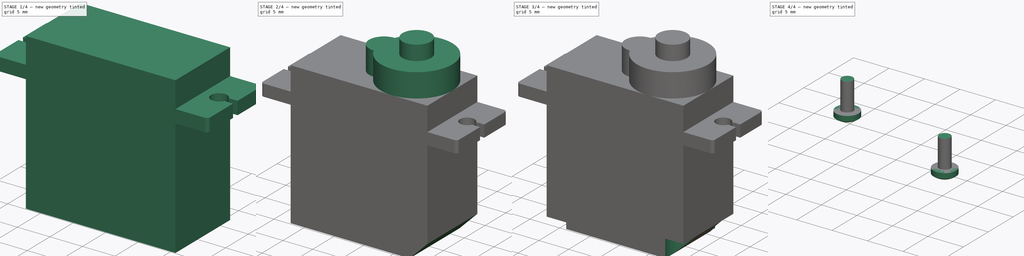
[diagram: build sequence overview — one tinted view per stage of 4, left to right]
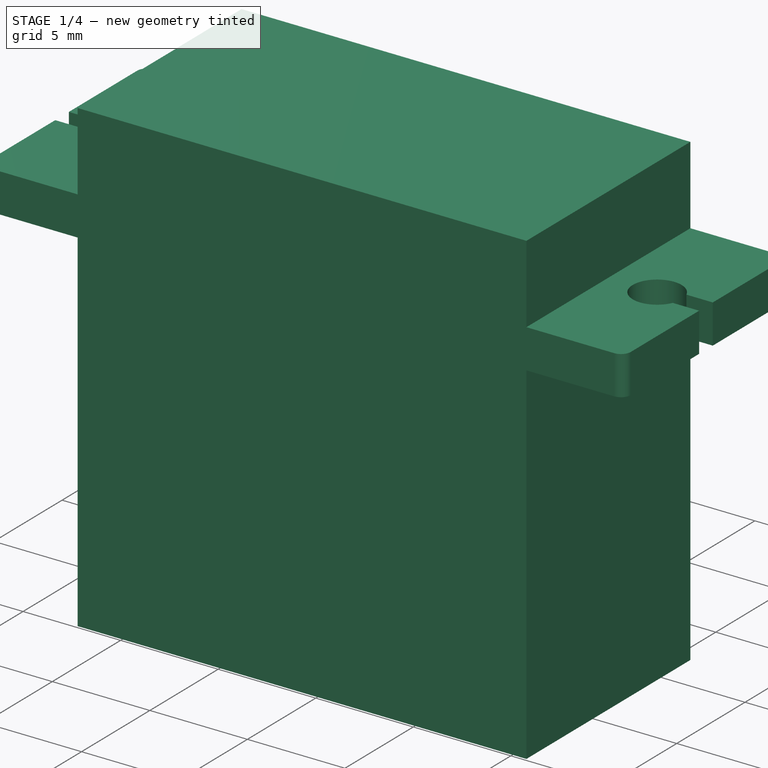
[diagram: stage 1 of 4 — iso view after this stage's code; geometry added in this stage tinted green]
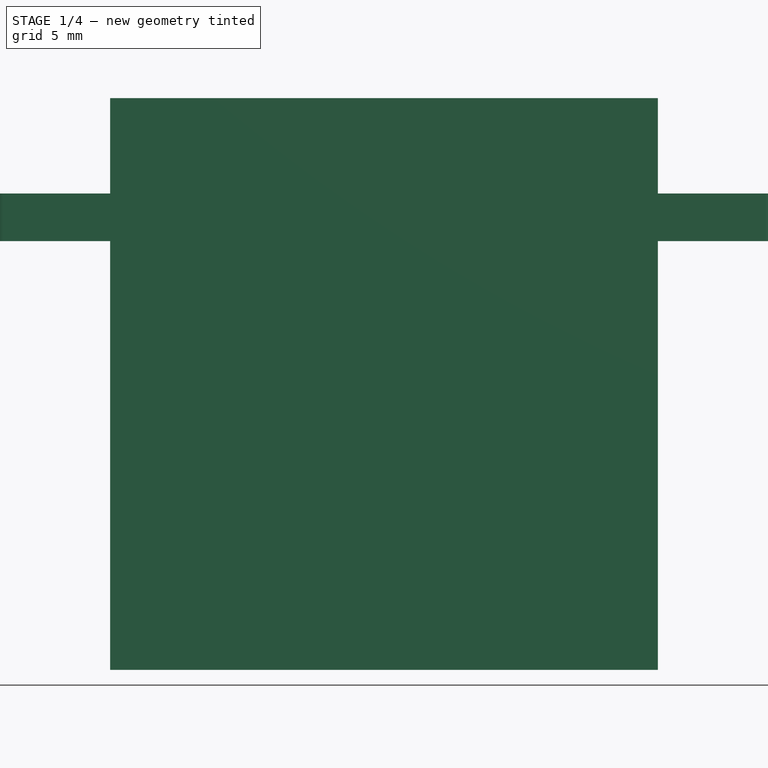
[diagram: stage 1 of 4 — front view after this stage's code; geometry added in this stage tinted green]
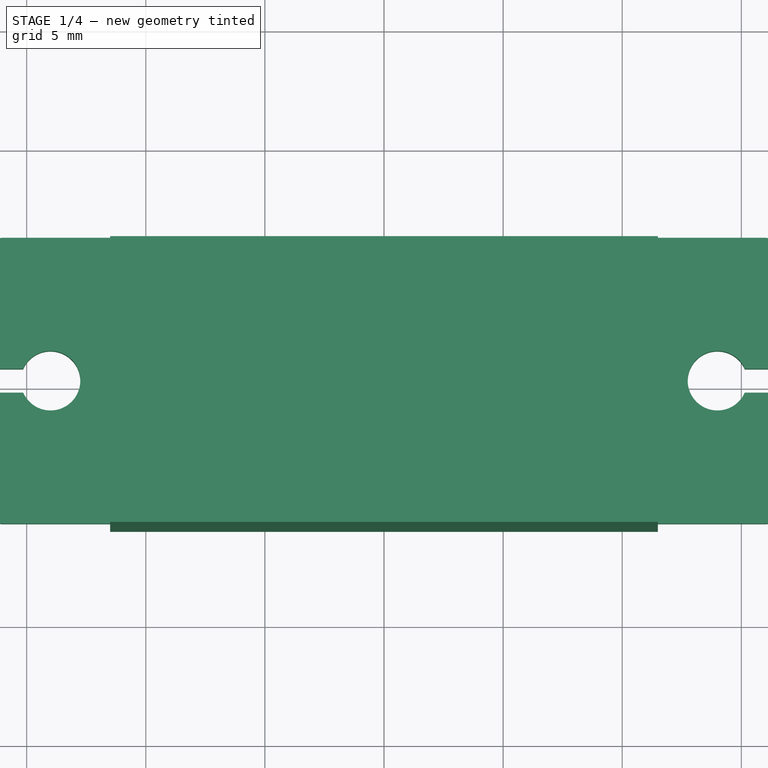
[diagram: stage 1 of 4 — top view after this stage's code; geometry added in this stage tinted green]
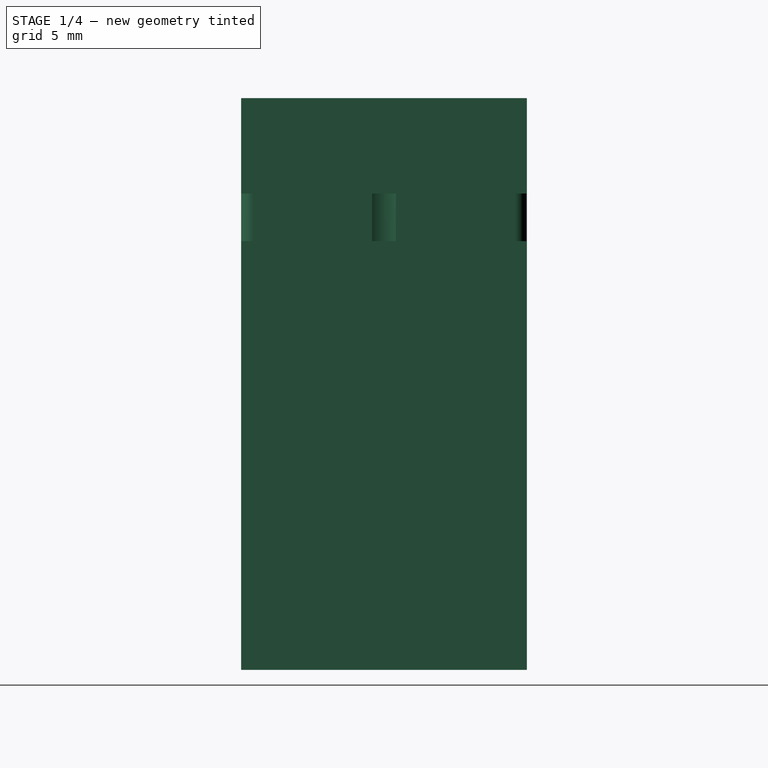
[diagram: stage 1 of 4 — right view after this stage's code; geometry added in this stage tinted green]
FCSTD DOCUMENT  (FreeCAD 0.19R24276 (Git))
Label: servo_SG90
License: All rights reserved
LicenseURL: http://en.wikipedia.org/wiki/All_rights_reserved
objects: Sketcher::SketchObject×9, PartDesign::Pad×4, PartDesign::Pocket×4, App::DocumentObjectGroup×2, Part::FeaturePython×2, PartDesign::Plane×1, PartDesign::Mirrored×1, PartDesign::Chamfer×1, PartDesign::SubShapeBinder×1, PartDesign::Body×1
note: 33 computed .brp shape members not serialized (recipe doc carries the construction recipe); baked Part::Feature solids carry a one-line shape summary decoded from their .brp

FEATURE [Sketcher::SketchObject] Sketch
  FullyConstrained = true
  MapMode = 5
  Support = -> [XY_Plane]
  sketch-geometry (4):
    g0: LineSegment StartX=-11.5 StartY=-6 StartZ=0 EndX=11.5 EndY=-6 EndZ=0
    g1: LineSegment StartX=11.5 StartY=-6 StartZ=0 EndX=11.5 EndY=6 EndZ=0
    g2: LineSegment StartX=11.5 StartY=6 StartZ=0 EndX=-11.5 EndY=6 EndZ=0
    g3: LineSegment StartX=-11.5 StartY=6 StartZ=0 EndX=-11.5 EndY=-6 EndZ=0
  constraints (11):
    c: Coincident(g0,g1)
    c: Coincident(g1,g2)
    c: Coincident(g2,g3)
    c: Coincident(g3,g0)
    c: Horizontal(g0)
    c: Horizontal(g2)
    c: Vertical(g1)
    c: Vertical(g3)
    c: Symmetric(g0,g1,g-1)
    c: DistanceX(g0,g0) = 23
    c: DistanceY(g1,g1) = 12
FEATURE [PartDesign::Pad] Pad
  Direction = (1,1,1)
  Length = 24
  Length2 = 100
  Profile = -> Sketch
  Type = 0
FEATURE [PartDesign::Plane] DatumPlane
  AttachmentOffset = pos=(0,0,-4) rot=(0,0,1;0rad)
  Length = 60
  MapMode = 5
  Placement = pos=(0,0,20) rot=(0,0,1;0rad)
  ResizeMode = 0
  Support = -> [Pad]
  Width = 60
FEATURE [Sketcher::SketchObject] Sketch001
  ExternalGeometry = -> [Pad]
  FullyConstrained = true
  MapMode = 5
  Placement = pos=(0,0,20) rot=(0,0,1;0rad)
  Support = -> [DatumPlane]
  sketch-geometry (10):
    g0: LineSegment StartX=11.5 StartY=6 StartZ=0 EndX=16 EndY=6 EndZ=0
    g1: LineSegment StartX=16.5 StartY=5.5 StartZ=0 EndX=16.5 EndY=0.5 EndZ=0
    g2: LineSegment StartX=16 StartY=-6 StartZ=0 EndX=11.5 EndY=-6 EndZ=0
    g3: LineSegment StartX=11.5 StartY=-6 StartZ=0 EndX=11.5 EndY=6 EndZ=0
    g4: ArcOfCircle CenterX=16 CenterY=5.5 CenterZ=0 NormalX=0 NormalY=0 NormalZ=1 AngleXU=0 Radius=0.5 StartAngle=3e-16 EndAngle=1.5708
    g5: ArcOfCircle CenterX=16 CenterY=-5.5 CenterZ=0 NormalX=0 NormalY=0 NormalZ=1 AngleXU=0 Radius=0.5 StartAngle=4.71239 EndAngle=6.28319
    g6: ArcOfCircle CenterX=14 CenterY=0 CenterZ=0 NormalX=0 NormalY=0 NormalZ=1 AngleXU=0 Radius=1.25 StartAngle=0.411517 EndAngle=5.87167
    g7: LineSegment StartX=15.1456 StartY=0.5 StartZ=0 EndX=16.5 EndY=0.5 EndZ=0
    g8: LineSegment StartX=16.5 StartY=-0.5 StartZ=0 EndX=15.1456 EndY=-0.5 EndZ=0
    g9: LineSegment StartX=16.5 StartY=-0.5 StartZ=0 EndX=16.5 EndY=-5.5 EndZ=0
  constraints (25):
    c: Coincident(g2,g3)
    c: Coincident(g3,g0)
    c: Horizontal(g0)
    c: Horizontal(g2)
    c: Coincident(g0,g-3)
    c: Coincident(g2,g-4)
    c: Tangent(g0,g4) = 1.5708
    c: Tangent(g1,g4) = 1.5708
    c: Tangent(g2,g5) = 1.5708
    c: Equal(g4,g5)
    c: DistanceX(g2,g9) = 5
    c: Radius(g4) = 0.5
    c: PointOnObject(g6,g-1)
    c: Diameter(g6) = 2.5
    c: DistanceX(g-1,g6) = 14
    c: Horizontal(g7)
    c: Horizontal(g8)
    c: Tangent(g1,g9)
    c: Coincident(g7,g1)
    c: Coincident(g8,g9)
    c: Coincident(g6,g7)
    c: Coincident(g6,g8)
    c: DistanceY(g6,g6) = 1
    c: Symmetric(g1,g8,g-1)
    c: Tangent(g9,g5) = 1.5708
FEATURE [PartDesign::Pad] Pad001
  BaseFeature = -> Pad
  Direction = (1,1,1)
  Length = 2
  Length2 = 100
  Profile = -> Sketch001
  Reversed = true
  Type = 0
FEATURE [PartDesign::Mirrored] Mirrored
  BaseFeature = -> Pad001
  MirrorPlane = -> Sketch001 [V_Axis]
  Originals = -> [Pad001]
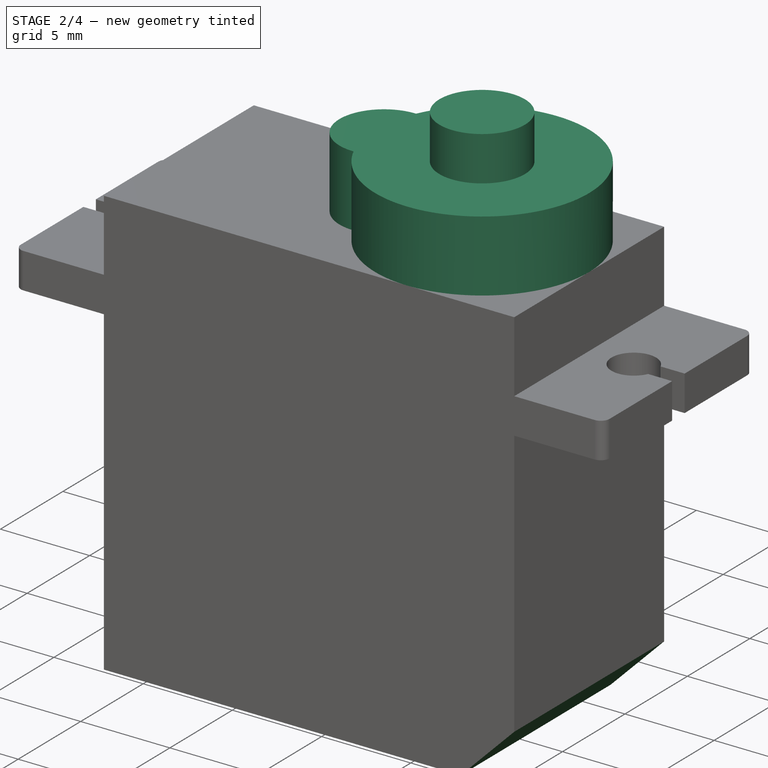
[diagram: stage 2 of 4 — iso view after this stage's code; geometry added in this stage tinted green]
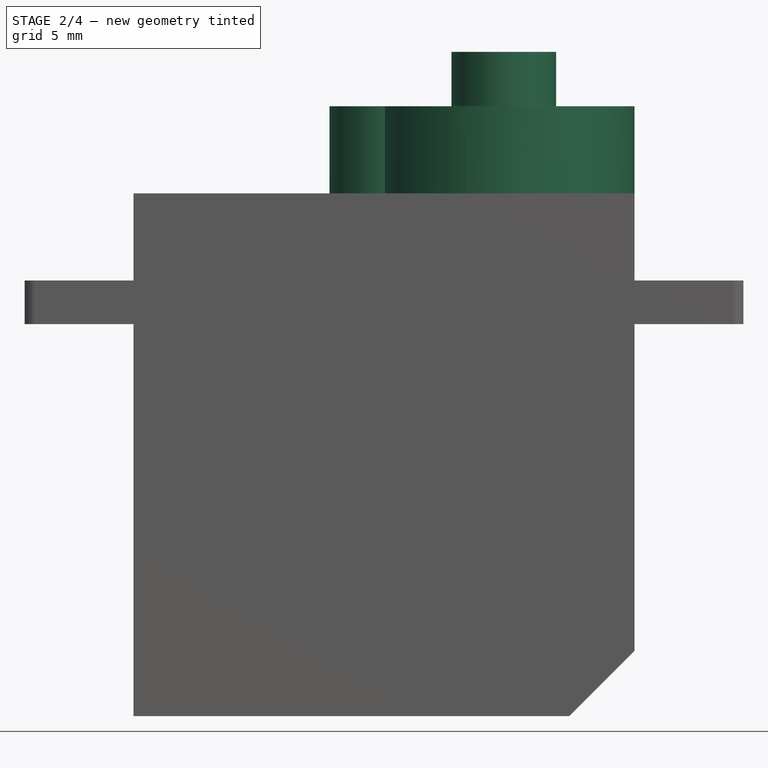
[diagram: stage 2 of 4 — front view after this stage's code; geometry added in this stage tinted green]
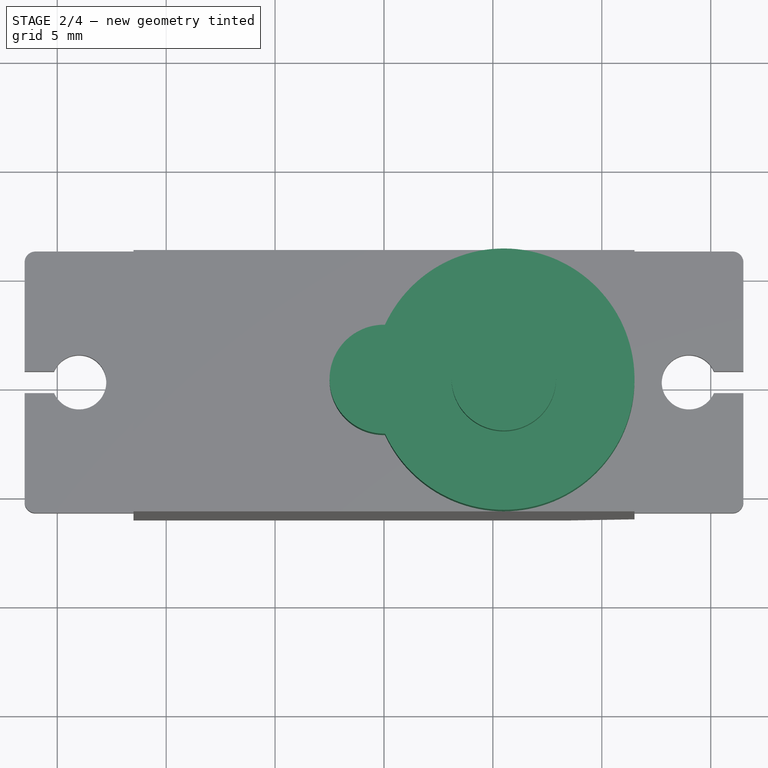
[diagram: stage 2 of 4 — top view after this stage's code; geometry added in this stage tinted green]
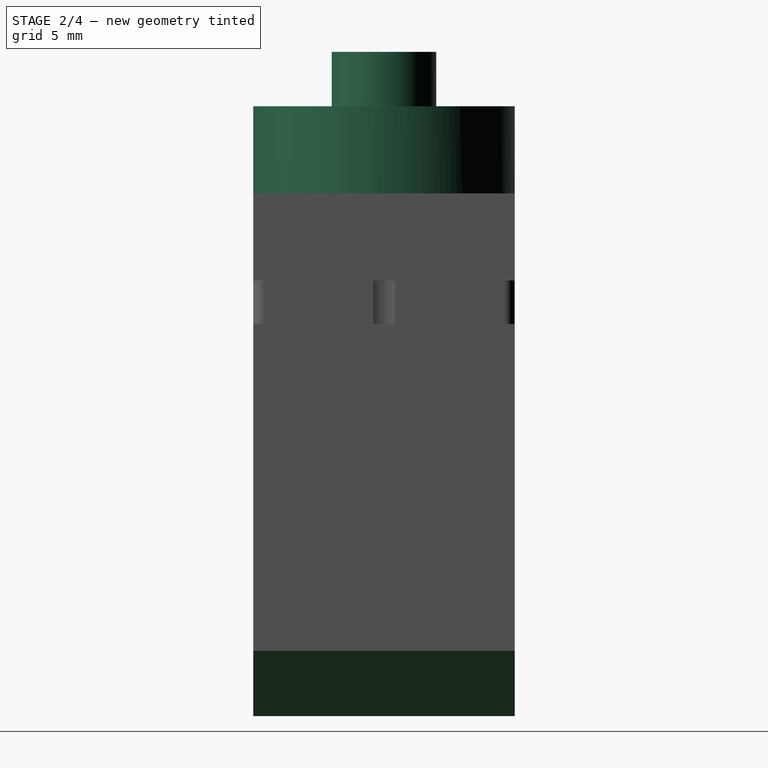
[diagram: stage 2 of 4 — right view after this stage's code; geometry added in this stage tinted green]
FEATURE [Sketcher::SketchObject] Sketch002
  ExternalGeometry = -> [Mirrored]
  FullyConstrained = true
  MapMode = 5
  Placement = pos=(0,0,24) rot=(0,0,1;0rad)
  Support = -> [Mirrored]
  sketch-geometry (4):
    g0: ArcOfCircle CenterX=5.5 CenterY=0 CenterZ=0 NormalX=0 NormalY=0 NormalZ=1 AngleXU=0 Radius=6 StartAngle=3.57129 EndAngle=8.99508
    g1: ArcOfCircle CenterX=2e-16 CenterY=0 CenterZ=0 NormalX=0 NormalY=0 NormalZ=1 AngleXU=0 Radius=2.5 StartAngle=1.55261 EndAngle=4.73057
    g2: GeomPoint X=-2.5 Y=0 Z=0
    g3: GeomPoint X=11.5 Y=0 Z=0
  constraints (12):
    c: PointOnObject(g0,g-1)
    c: Tangent(g0,g-5)
    c: Tangent(g0,g-6)
    c: PointOnObject(g1,g-1)
    c: Diameter(g1) = 5
    c: PointOnObject(g2,g1)
    c: PointOnObject(g2,g-1)
    c: PointOnObject(g3,g0)
    c: PointOnObject(g3,g-1)
    c: DistanceX(g2,g3) = 14
    c: Coincident(g0,g1)
    c: Coincident(g0,g1)
FEATURE [PartDesign::Pad] Pad002
  BaseFeature = -> Mirrored
  Direction = (1,1,1)
  Length = 4
  Length2 = 100
  Profile = -> Sketch002
  Type = 0
FEATURE [Sketcher::SketchObject] Sketch003
  ExternalGeometry = -> [Pad002]
  FullyConstrained = true
  MapMode = 5
  Placement = pos=(0,0,28) rot=(0,0,1;0rad)
  Support = -> [Pad002]
  sketch-geometry (1):
    g0: Circle CenterX=5.5 CenterY=0 CenterZ=0 NormalX=0 NormalY=0 NormalZ=1 AngleXU=0 Radius=2.4
  constraints (2):
    c: Coincident(g0,g-3)
    c: Diameter(g0) = 4.8
FEATURE [PartDesign::Pad] Pad003
  BaseFeature = -> Pad002
  Direction = (1,1,1)
  Length = 2.5
  Length2 = 100
  Profile = -> Sketch003
  Type = 0
FEATURE [Sketcher::SketchObject] Sketch004
  ExternalGeometry = -> [Pad003]
  FullyConstrained = false
  MapMode = 5
  Placement = pos=(0,0,0) rot=(1,0,0;3.14159rad)
  Support = -> [Pad003]
  sketch-geometry (4):
    g0: Circle CenterX=11.8348 CenterY=5.61612 CenterZ=0 NormalX=0 NormalY=0 NormalZ=1 AngleXU=0 Radius=2.5
    g1: Circle CenterX=-11.8348 CenterY=5.61612 CenterZ=0 NormalX=0 NormalY=0 NormalZ=1 AngleXU=0 Radius=2.5
    g2: Circle CenterX=-11.8348 CenterY=-5.61612 CenterZ=0 NormalX=0 NormalY=0 NormalZ=1 AngleXU=0 Radius=2.5
    g3: Circle CenterX=11.8348 CenterY=-5.61612 CenterZ=0 NormalX=0 NormalY=0 NormalZ=1 AngleXU=0 Radius=2.5
  constraints (8):
    c: Diameter(g0) = 5
    c: Equal(g0,g1)
    c: Equal(g0,g2)
    c: Equal(g0,g3)
    c: Symmetric(g1,g0,g-2)
    c: Vertical(g1,g2)
    c: Horizontal(g3,g2)
    c: Symmetric(g3,g0,g-1)
FEATURE [PartDesign::Chamfer] Chamfer
  Angle = 45
  Base = -> Pad003 [Edge19]
  BaseFeature = -> Pad003
  ChamferType = 0
  FlipDirection = false
  Size = 3
  Size2 = 1
  SupportTransform = false
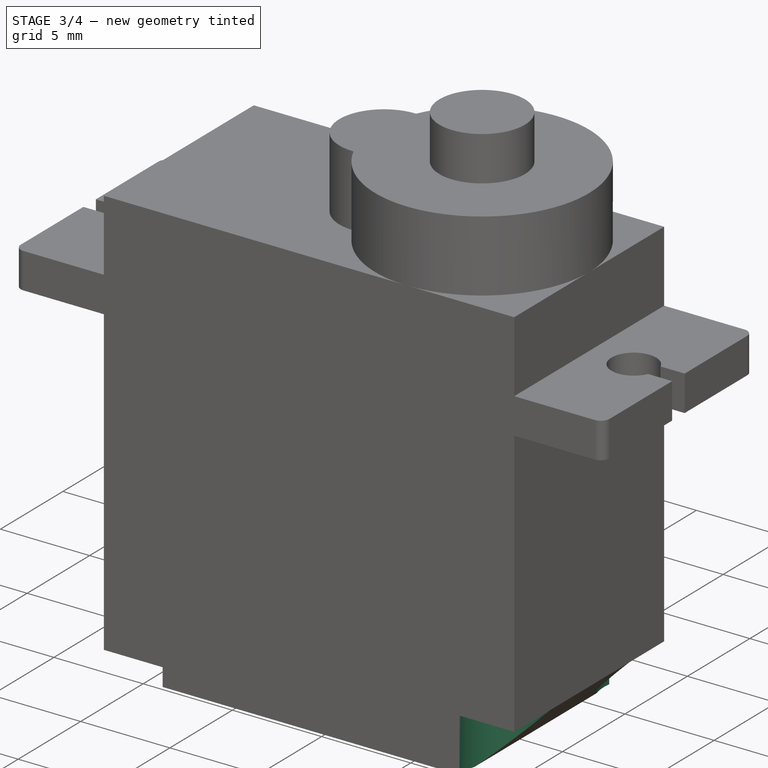
[diagram: stage 3 of 4 — iso view after this stage's code; geometry added in this stage tinted green]
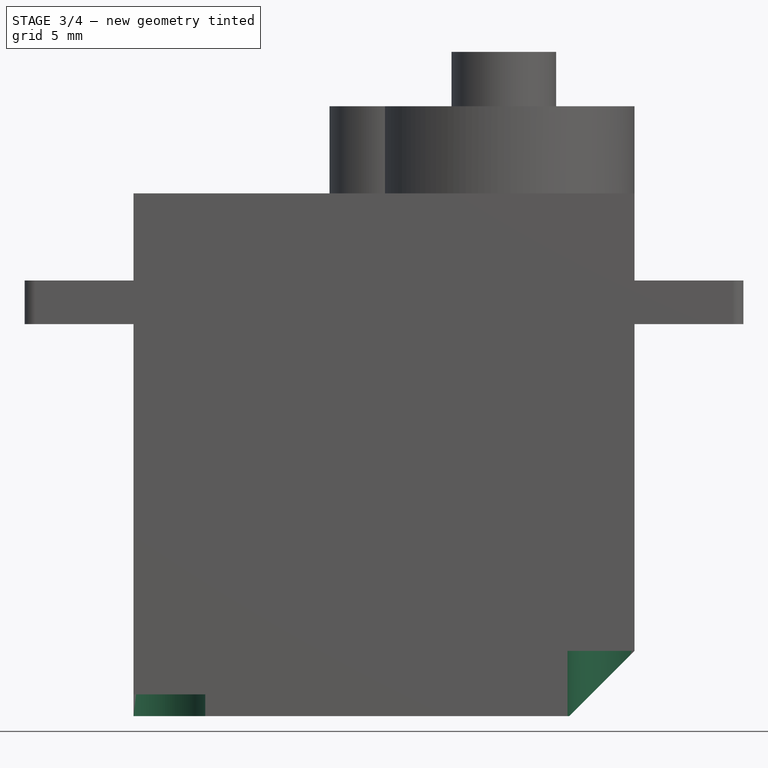
[diagram: stage 3 of 4 — front view after this stage's code; geometry added in this stage tinted green]
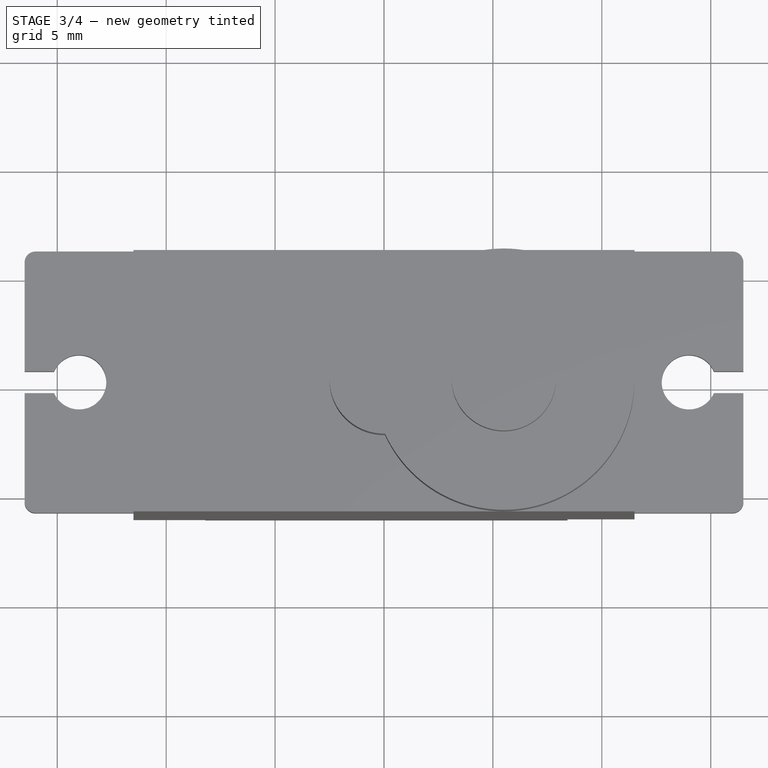
[diagram: stage 3 of 4 — top view after this stage's code; geometry added in this stage tinted green]
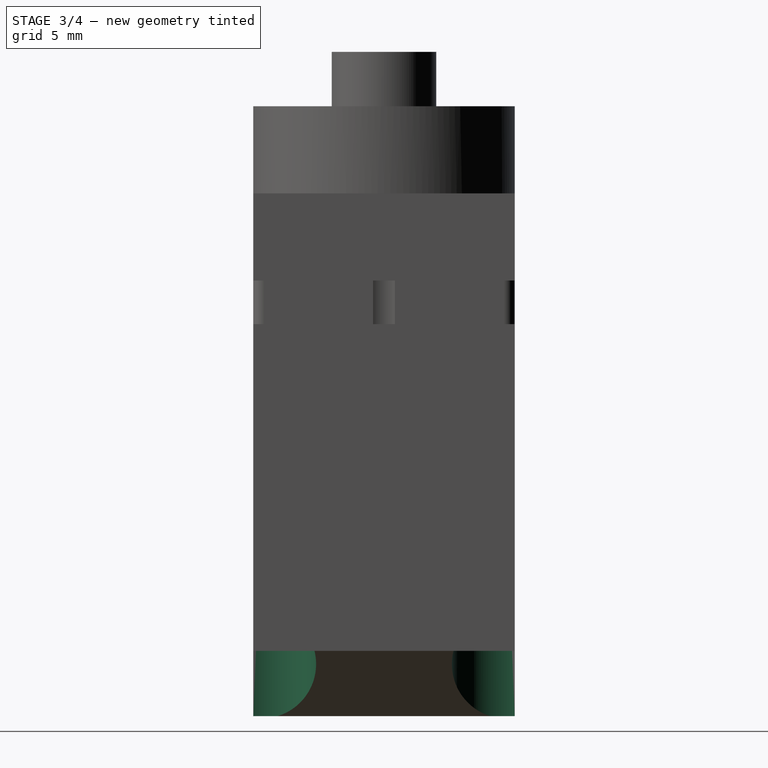
[diagram: stage 3 of 4 — right view after this stage's code; geometry added in this stage tinted green]
FEATURE [App::DocumentObjectGroup] Group  label="Grupo"
  Group = -> [Sketch004]
FEATURE [PartDesign::SubShapeBinder] Binder
  BindMode = 0
  ClaimChildren = false
  Context = -> Body [Binder.]
  Fuse = false
  MakeFace = true
  PartialLoad = false
  Relative = true
  Support = -> [Sketch004]
  _Version = 2
FEATURE [Sketcher::SketchObject] Sketch005
  ExternalGeometry = -> [Binder]
  FullyConstrained = false
  MapMode = 5
  Support = -> [Binder]
  sketch-geometry (3):
    g0: Circle CenterX=-10.6788 CenterY=-5.61612 CenterZ=0 NormalX=0 NormalY=0 NormalZ=1 AngleXU=0 Radius=2.5
    g1: Circle CenterX=-10.6788 CenterY=5.61612 CenterZ=0 NormalX=0 NormalY=0 NormalZ=1 AngleXU=0 Radius=2.5
    g2: GeomPoint X=-11.2568 Y=-8.04839 Z=0
  constraints (6):
    c: Equal(g0,g1)
    c: PointOnObject(g2,g-3)
    c: PointOnObject(g2,g0)
    c: Symmetric(g1,g0,g-1)
    c: Equal(g-3,g0)
    c: Horizontal(g-4,g1)
FEATURE [PartDesign::Pocket] Pocket
  BaseFeature = -> Chamfer
  Length = 1
  Length2 = 100
  Profile = -> Sketch005
  Reversed = true
  Type = 0
FEATURE [Sketcher::SketchObject] Sketch006
  ExternalGeometry = -> [Binder]
  FullyConstrained = false
  MapMode = 5
  Support = -> [Binder]
  sketch-geometry (2):
    g0: Circle CenterX=10.8939 CenterY=-5.61612 CenterZ=0 NormalX=0 NormalY=0 NormalZ=1 AngleXU=0 Radius=2.5
    g1: Circle CenterX=10.8939 CenterY=5.61612 CenterZ=0 NormalX=0 NormalY=0 NormalZ=1 AngleXU=0 Radius=2.5
  constraints (4):
    c: Equal(g0,g1)
    c: Equal(g-3,g0)
    c: Symmetric(g0,g1,g-1)
    c: Horizontal(g1,g-4)
FEATURE [PartDesign::Pocket] Pocket001
  BaseFeature = -> Pocket
  Length = 3
  Length2 = 100
  Profile = -> Sketch006
  Reversed = true
  Type = 0
FEATURE [Sketcher::SketchObject] Sketch007
  FullyConstrained = false
  MapMode = 5
  Placement = pos=(0,0,1) rot=(1,0,0;3.14159rad)
  Support = -> [Pocket001]
  sketch-geometry (2):
    g0: Circle CenterX=-10.3123 CenterY=-4.92955 CenterZ=0 NormalX=0 NormalY=0 NormalZ=1 AngleXU=0 Radius=0.8
    g1: Circle CenterX=10.3123 CenterY=4.92955 CenterZ=0 NormalX=0 NormalY=0 NormalZ=1 AngleXU=0 Radius=0.8
  constraints (3):
    c: Symmetric(g1,g0,g-1)
    c: Diameter(g1) = 1.6
    c: Equal(g0,g1)
FEATURE [PartDesign::Pocket] Pocket002
  BaseFeature = -> Pocket001
  Length = 5
  Length2 = 100
  Profile = -> Sketch007
  Type = 0
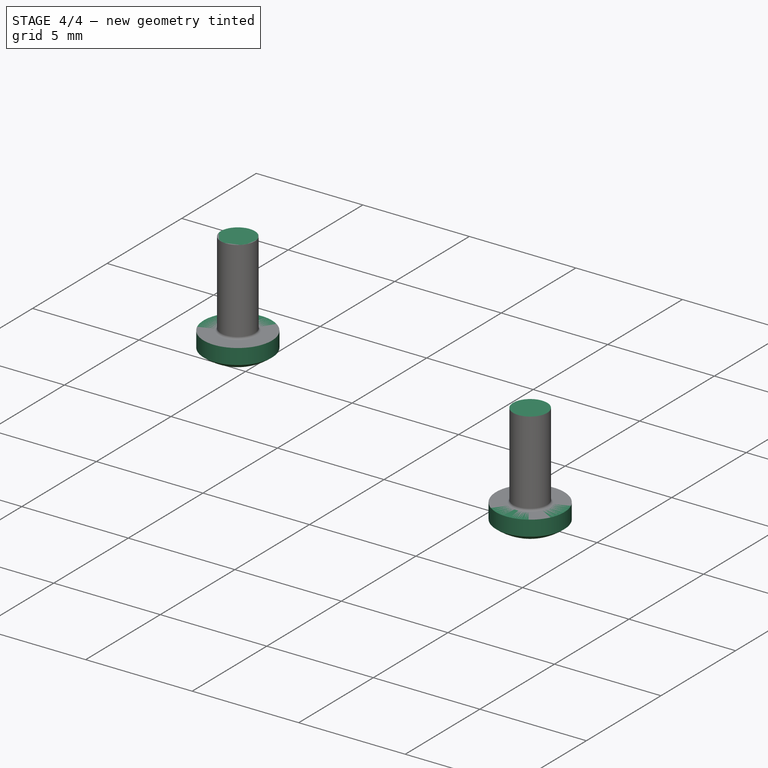
[diagram: stage 4 of 4 — iso view after this stage's code; geometry added in this stage tinted green]
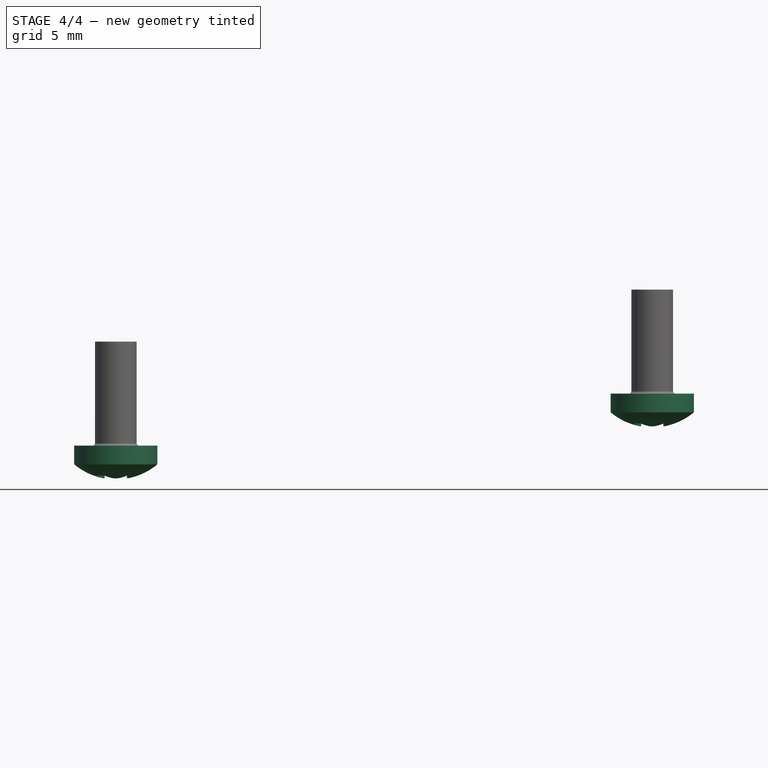
[diagram: stage 4 of 4 — front view after this stage's code; geometry added in this stage tinted green]
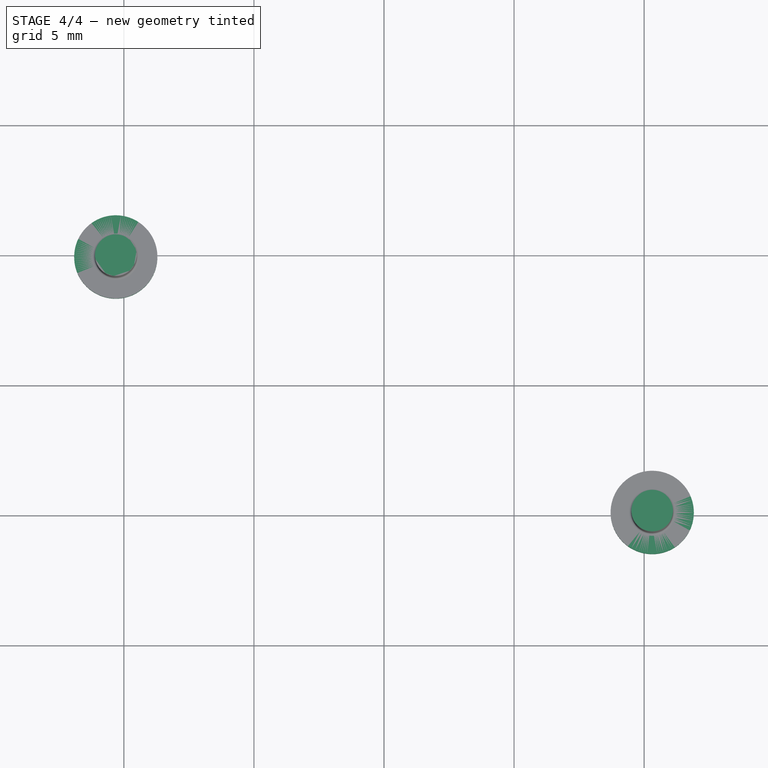
[diagram: stage 4 of 4 — top view after this stage's code; geometry added in this stage tinted green]
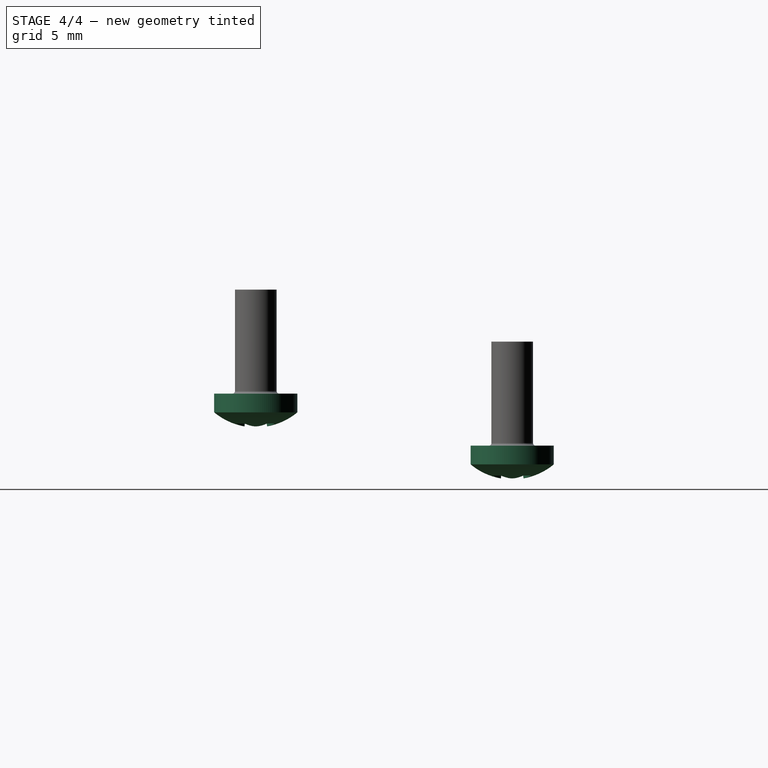
[diagram: stage 4 of 4 — right view after this stage's code; geometry added in this stage tinted green]
FEATURE [Sketcher::SketchObject] Sketch008
  ExternalGeometry = -> [Pocket002]
  FullyConstrained = true
  MapMode = 5
  Placement = pos=(0,0,30.5) rot=(0,0,1;0rad)
  Support = -> [Pocket002]
  sketch-geometry (1):
    g0: Circle CenterX=5.5 CenterY=0 CenterZ=0 NormalX=0 NormalY=0 NormalZ=1 AngleXU=0 Radius=0.75
  constraints (2):
    c: Coincident(g0,g-3)
    c: Diameter(g0) = 1.5
FEATURE [PartDesign::Pocket] Pocket003
  BaseFeature = -> Pocket002
  Length = 5
  Length2 = 100
  Profile = -> Sketch008
  Type = 0
FEATURE [PartDesign::Body] Body
  Group = -> [Sketch,Pad,DatumPlane,Sketch001,Pad001,Mirrored,Sketch002,Pad002,Sketch003,Pad003,Chamfer,Binder,Sketch005,Pocket,Sketch006,Pocket001,Sketch007,Pocket002,Sketch008,Pocket003]
  Origin = -> Origin
  Tip = -> Pocket003
FEATURE [Part::FeaturePython] Screw001  label="M1.6x4-Screw"  # Fasteners workbench fastener (typed FeaturePython)
  Placement = pos=(10.3123,-4.92955,3) rot=(-1,0,0;3.14159rad)
  baseObject = -> Body [Edge58]
  diameter = 1
  invert = false
  length = 9
  lengthCustom = 4
  matchOuter = true
  offset = 0
  thread = false
  type = 34
FEATURE [Part::FeaturePython] Screw002  label="M1.6x4-Screw001"  # Fasteners workbench fastener (typed FeaturePython)
  Placement = pos=(-10.3123,4.92955,1) rot=(-1,0,0;3.14159rad)
  baseObject = -> Body [Edge110]
  diameter = 1
  invert = false
  length = 9
  lengthCustom = 4
  matchOuter = true
  offset = 0
  thread = false
  type = 34
FEATURE [App::DocumentObjectGroup] Group001  label="tornillos"
  Group = -> [Screw001,Screw002]
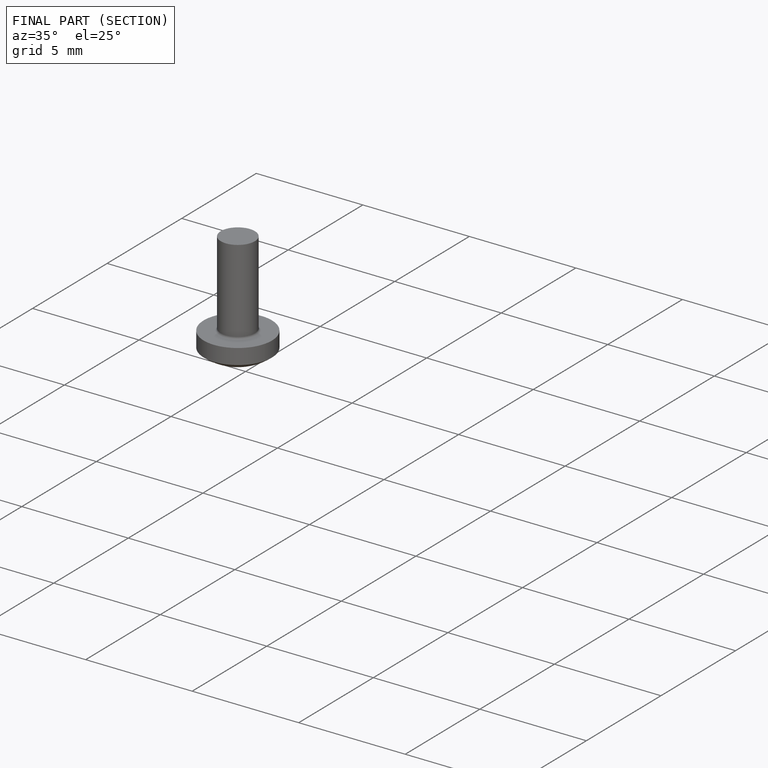
[diagram: finished part — half-section view (interior)]
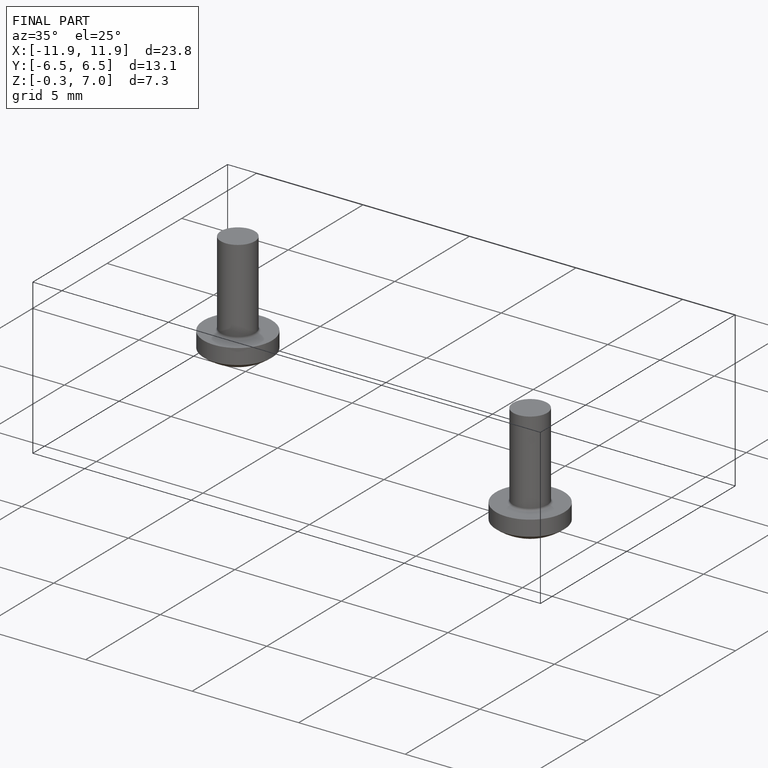
[diagram: finished part — iso view with bounding-box wireframe]
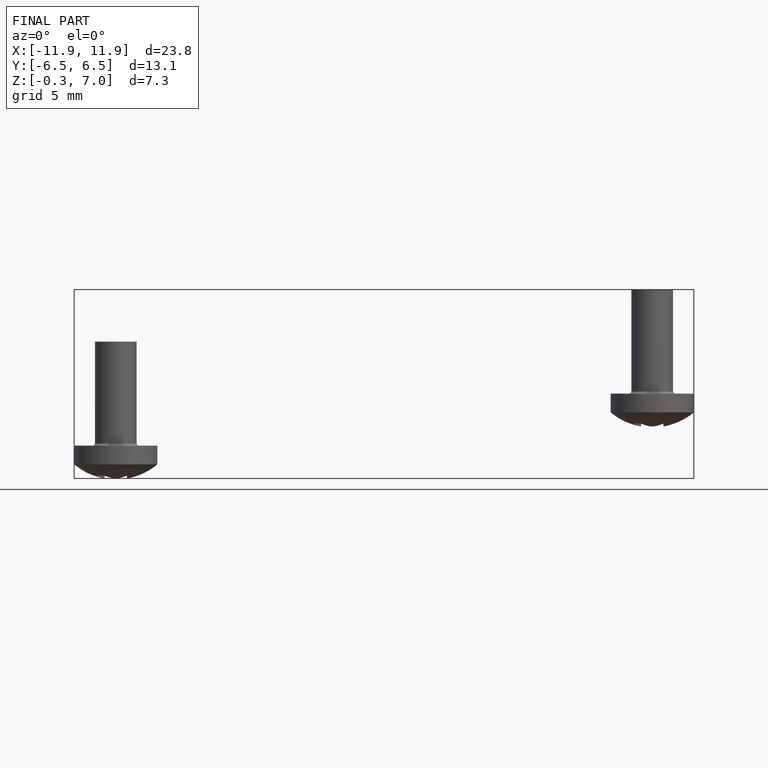
[diagram: finished part — front view with bounding-box wireframe]
